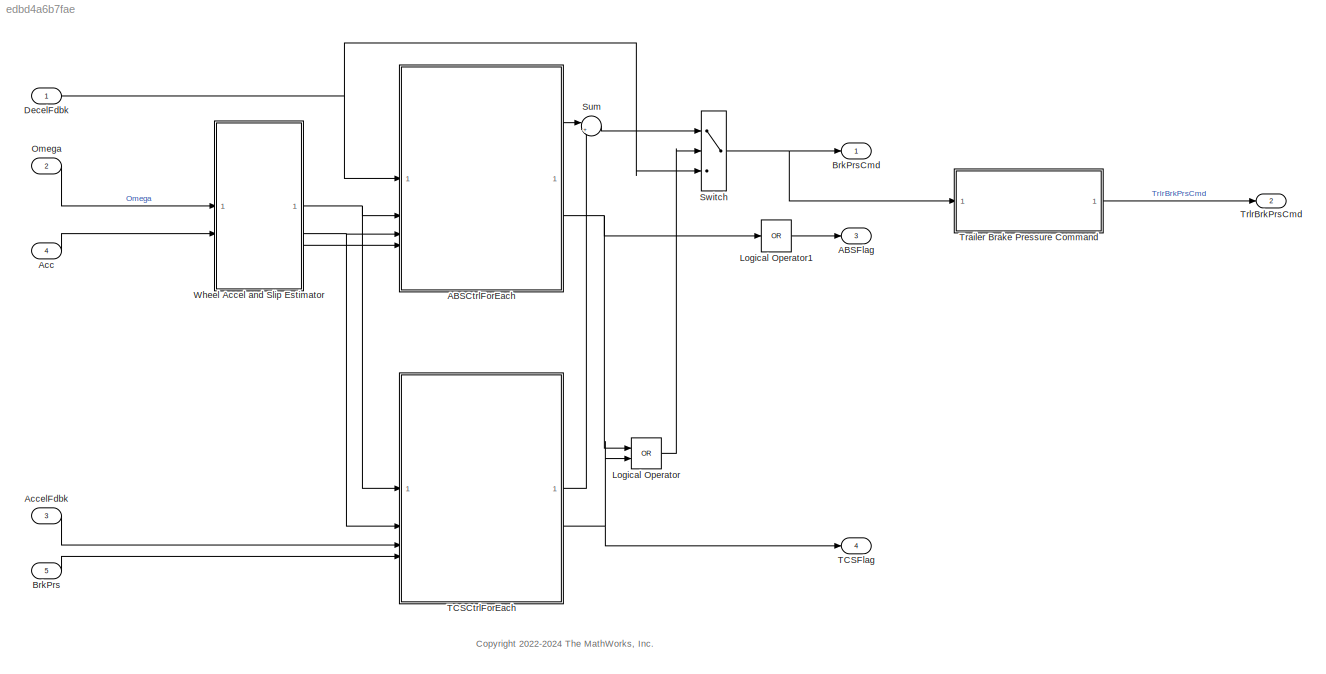
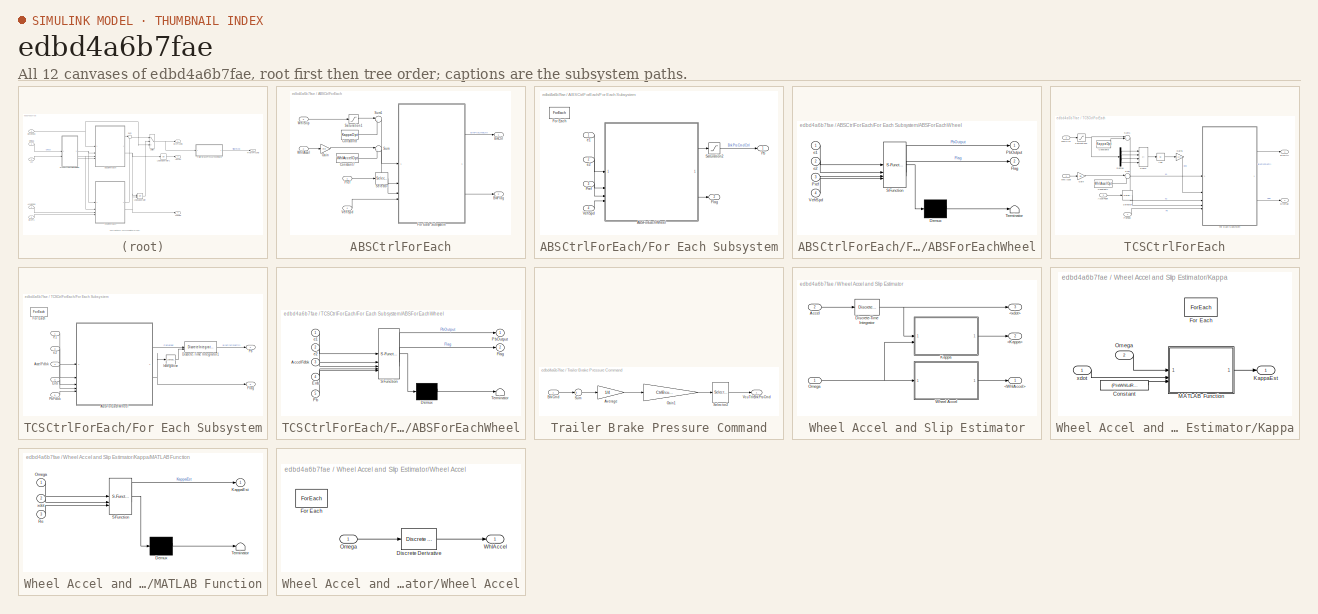
[diagram: thumbnail index - all 12 canvases of the model, root first then tree order]
MODEL slx_edbd4a6b7fae
KIND model
BLOCK [SubSystem] ABSCtrlForEach
BLOCK [Outport] ABSCtrlForEach/BrkCtrl
BLOCK [Outport] ABSCtrlForEach/BrkFlag
  Port = 2
BLOCK [Constant] ABSCtrlForEach/Constant7
  Value = WhlAccelOpt
BLOCK [Constant] ABSCtrlForEach/Constant8
  Value = KappaOpt
BLOCK [SubSystem] ABSCtrlForEach/For Each Subsystem
  TreatAsAtomicUnit = on
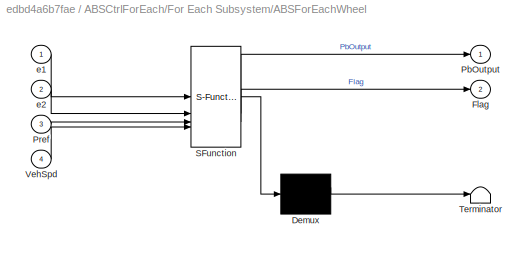
BLOCK [SubSystem] ABSCtrlForEach/For Each Subsystem/ABSForEachWheel
  ErrorFcn = Stateflow.Translate.translate
  InitFcn = [~]=vehdynicon('vehdynblk',gcb);
  PermitHierarchicalResolution = ExplicitOnly
  SFBlockType = Chart
  TreatAsAtomicUnit = on
BLOCK [Demux] ABSCtrlForEach/For Each Subsystem/ABSForEachWheel/ Demux 
  Outputs = 1
BLOCK [S-Function] ABSCtrlForEach/For Each Subsystem/ABSForEachWheel/ SFunction 
  EnableBusSupport = off
  FunctionName = sf_sfun
  Parameters = A,a1,a2,b,v1,v4,v5
  PortCounts = [4 3]
  SFcnIsStateOwnerBlock = off
  SFunctionDeploymentMode = off
  Tag = Stateflow S-Function 6
BLOCK [Terminator] ABSCtrlForEach/For Each Subsystem/ABSForEachWheel/ Terminator 
BLOCK [Outport] ABSCtrlForEach/For Each Subsystem/ABSForEachWheel/Flag
  Port = 2
BLOCK [Outport] ABSCtrlForEach/For Each Subsystem/ABSForEachWheel/PbOutput
BLOCK [Inport] ABSCtrlForEach/For Each Subsystem/ABSForEachWheel/Pref
  Port = 3
BLOCK [Inport] ABSCtrlForEach/For Each Subsystem/ABSForEachWheel/VehSpd
  Port = 4
BLOCK [Inport] ABSCtrlForEach/For Each Subsystem/ABSForEachWheel/e1
BLOCK [Inport] ABSCtrlForEach/For Each Subsystem/ABSForEachWheel/e2
  Port = 2
BLOCK [Outport] ABSCtrlForEach/For Each Subsystem/Flag
  ConcatenationDimension = 1
  Port = 2
BLOCK [ForEach] ABSCtrlForEach/For Each Subsystem/For Each
  DisableCoverage = on
BLOCK [Outport] ABSCtrlForEach/For Each Subsystem/Pb
  ConcatenationDimension = 1
BLOCK [Inport] ABSCtrlForEach/For Each Subsystem/Pref
  Partition = on
  PartitionDimension = 1
  PartitionOffset = 0
  PartitionWidth = 1
  Port = 3
BLOCK [Saturate] ABSCtrlForEach/For Each Subsystem/Saturation2
  LowerLimit = 0
  UpperLimit = 1
  ZeroCross = off
BLOCK [Inport] ABSCtrlForEach/For Each Subsystem/VehSpd
  Port = 4
BLOCK [Inport] ABSCtrlForEach/For Each Subsystem/e1
  Partition = on
  PartitionDimension = 1
  PartitionOffset = 0
  PartitionWidth = 1
BLOCK [Inport] ABSCtrlForEach/For Each Subsystem/e2
  Partition = on
  PartitionDimension = 1
  PartitionOffset = 0
  PartitionWidth = 1
  Port = 2
BLOCK [Gain] ABSCtrlForEach/Gain
  Gain = Re
BLOCK [Inport] ABSCtrlForEach/Pref
BLOCK [Saturate] ABSCtrlForEach/Saturation1
  LowerLimit = -1
  UpperLimit = 1
BLOCK [Selector] ABSCtrlForEach/Selector
  IndexOptions = Index vector (dialog)
  Indices = [1 1 1 1]
  InputPortWidth = 1
  OutputSizes = 1
BLOCK [Sum] ABSCtrlForEach/Sum
  Inputs = |+-
BLOCK [Sum] ABSCtrlForEach/Sum1
  Inputs = |+-
BLOCK [Inport] ABSCtrlForEach/VehSpd
  Port = 4
BLOCK [Inport] ABSCtrlForEach/WhlAccel
  Port = 2
BLOCK [Inport] ABSCtrlForEach/WhlSlip
  Port = 3
BLOCK [Outport] ABSFlag
  Port = 3
BLOCK [Inport] Acc
  OutDataTypeStr = double
  Port = 4
  PortDimensions = 1
BLOCK [Inport] AccelFdbk
  OutDataTypeStr = double
  Port = 3
  PortDimensions = 1
BLOCK [Inport] BrkPrs
  OutDataTypeStr = double
  Port = 5
  PortDimensions = 4
BLOCK [Outport] BrkPrsCmd
  OutDataTypeStr = double
  PortDimensions = 4
BLOCK [Inport] DecelFdbk
  OutDataTypeStr = double
  PortDimensions = 1
BLOCK [Logic] Logical Operator
  AllPortsSameDT = off
  Operator = OR
  OutDataTypeStr = boolean
BLOCK [Logic] Logical Operator1
  AllPortsSameDT = off
  Inputs = 1
  Operator = OR
  OutDataTypeStr = boolean
BLOCK [Inport] Omega
  OutDataTypeStr = double
  Port = 2
  PortDimensions = 4
BLOCK [Sum] Sum
  Inputs = |++
BLOCK [Switch] Switch
  Criteria = u2 > Threshold
  InputSameDT = off
  SaturateOnIntegerOverflow = off
BLOCK [SubSystem] TCSCtrlForEach
BLOCK [Abs] TCSCtrlForEach/Abs
  SaturateOnIntegerOverflow = off
BLOCK [Inport] TCSCtrlForEach/AccelFdbk
  Port = 3
BLOCK [Outport] TCSCtrlForEach/BrkCtrl
BLOCK [Outport] TCSCtrlForEach/BrkFlag
  Port = 2
BLOCK [Constant] TCSCtrlForEach/Constant7
  Value = WhlAccelOpt
BLOCK [Constant] TCSCtrlForEach/Constant8
  Value = KappaOpt
BLOCK [Demux] TCSCtrlForEach/Demux
BLOCK [SubSystem] TCSCtrlForEach/For Each Subsystem
  TreatAsAtomicUnit = on
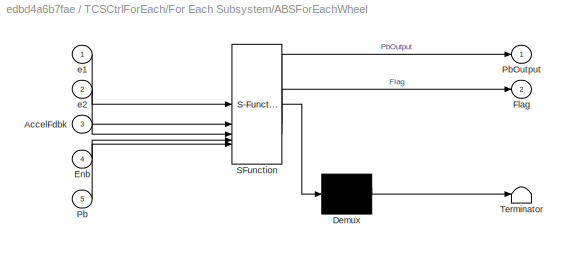
BLOCK [SubSystem] TCSCtrlForEach/For Each Subsystem/ABSForEachWheel
  ErrorFcn = Stateflow.Translate.translate
  InitFcn = [~]=vehdynicon('vehdynblk',gcb);
  PermitHierarchicalResolution = ExplicitOnly
  SFBlockType = Chart
  TreatAsAtomicUnit = on
BLOCK [Demux] TCSCtrlForEach/For Each Subsystem/ABSForEachWheel/ Demux 
  Outputs = 1
BLOCK [S-Function] TCSCtrlForEach/For Each Subsystem/ABSForEachWheel/ SFunction 
  EnableBusSupport = off
  FunctionName = sf_sfun
  Parameters = A,EntryEnableThreshold,RampOutSlipThreshold,a1,a2,b,v1,v4,v5
  PortCounts = [5 3]
  SFcnIsStateOwnerBlock = off
  SFunctionDeploymentMode = off
  Tag = Stateflow S-Function 7
BLOCK [Terminator] TCSCtrlForEach/For Each Subsystem/ABSForEachWheel/ Terminator 
BLOCK [Inport] TCSCtrlForEach/For Each Subsystem/ABSForEachWheel/AccelFdbk
  Port = 3
BLOCK [Inport] TCSCtrlForEach/For Each Subsystem/ABSForEachWheel/Enb
  Port = 4
BLOCK [Outport] TCSCtrlForEach/For Each Subsystem/ABSForEachWheel/Flag
  Port = 2
BLOCK [Inport] TCSCtrlForEach/For Each Subsystem/ABSForEachWheel/Pb
  Port = 5
BLOCK [Outport] TCSCtrlForEach/For Each Subsystem/ABSForEachWheel/PbOutput
BLOCK [Inport] TCSCtrlForEach/For Each Subsystem/ABSForEachWheel/e1
BLOCK [Inport] TCSCtrlForEach/For Each Subsystem/ABSForEachWheel/e2
  Port = 2
BLOCK [Inport] TCSCtrlForEach/For Each Subsystem/AccelFdbk
  Partition = on
  PartitionDimension = 1
  PartitionOffset = 0
  PartitionWidth = 1
  Port = 4
BLOCK [DiscreteIntegrator] TCSCtrlForEach/For Each Subsystem/Discrete-Time Integrator1
  ExternalReset = rising
  ICPrevOutput = DiscIntNeverNeededParam
  ICPrevScaledInput = DiscIntNeverNeededParam
  InitialConditionSetting = Auto
  IntegratorMethod = Integration: Trapezoidal
  LimitOutput = on
  LowerSaturationLimit = 0
  SampleTime = -1
  UpperSaturationLimit = 1
BLOCK [Inport] TCSCtrlForEach/For Each Subsystem/Enb
  Port = 2
BLOCK [Outport] TCSCtrlForEach/For Each Subsystem/Flag
  ConcatenationDimension = 1
  Port = 2
BLOCK [ForEach] TCSCtrlForEach/For Each Subsystem/For Each
  DisableCoverage = on
BLOCK [Reference] TCSCtrlForEach/For Each Subsystem/IsNegative  REF=simulink/Logic and Bit
Operations/Compare
To Zero
  SourceBlock = simulink/Logic and Bit\nOperations/Compare\nTo Zero
  SourceType = Compare To Zero
BLOCK [Outport] TCSCtrlForEach/For Each Subsystem/Pb
  ConcatenationDimension = 1
BLOCK [Inport] TCSCtrlForEach/For Each Subsystem/PbFdbk
  Partition = on
  PartitionDimension = 1
  PartitionOffset = 0
  PartitionWidth = 1
  Port = 5
BLOCK [Inport] TCSCtrlForEach/For Each Subsystem/e1
  Partition = on
  PartitionDimension = 1
  PartitionOffset = 0
  PartitionWidth = 1
BLOCK [Inport] TCSCtrlForEach/For Each Subsystem/e2
  Partition = on
  PartitionDimension = 1
  PartitionOffset = 0
  PartitionWidth = 1
  Port = 3
BLOCK [Gain] TCSCtrlForEach/Gain
  Gain = Re
BLOCK [Gain] TCSCtrlForEach/Gain1
  Gain = 1/2
BLOCK [Inport] TCSCtrlForEach/PbFdbk
  Port = 4
BLOCK [Saturate] TCSCtrlForEach/Saturation1
  LowerLimit = -1
  UpperLimit = 1
BLOCK [Selector] TCSCtrlForEach/Selector
  IndexOptions = Index vector (dialog)
  Indices = [1 1 1 1]
  InputPortWidth = 1
  OutputSizes = 1
BLOCK [Sum] TCSCtrlForEach/Sum
  Inputs = |+-
BLOCK [Sum] TCSCtrlForEach/Sum1
  Inputs = |+-
BLOCK [Sum] TCSCtrlForEach/Sum2
  IconShape = rectangular
  Inputs = ++--
BLOCK [Inport] TCSCtrlForEach/WhlAccel
BLOCK [Inport] TCSCtrlForEach/WhlSlip
  Port = 2
BLOCK [Outport] TCSFlag
  OutDataTypeStr = double
  Port = 4
  PortDimensions = 4
BLOCK [SubSystem] Trailer Brake Pressure Command
BLOCK [Gain] Trailer Brake Pressure Command/Average
  Gain = 1/4
BLOCK [Inport] Trailer Brake Pressure Command/BrkCmd
BLOCK [Gain] Trailer Brake Pressure Command/Gain1
  Gain = CtrlBcuTrlrBrkGain
BLOCK [Selector] Trailer Brake Pressure Command/Selector2
  IndexOptions = Index vector (dialog)
  Indices = [1 1 1 1 1 1]
  InputPortWidth = 1
  OutputSizes = 1
BLOCK [Sum] Trailer Brake Pressure Command/Sum
  Inputs = +
BLOCK [Outport] Trailer Brake Pressure Command/VcuTrlrBrkPrsCmd
BLOCK [Outport] TrlrBrkPrsCmd
  Port = 2
  PortDimensions = 6
  VectorParamsAs1DForOutWhenUnconnected = off
BLOCK [SubSystem] Wheel Accel and Slip Estimator
BLOCK [Outport] Wheel Accel and Slip Estimator/<Kappa>
  Port = 2
BLOCK [Outport] Wheel Accel and Slip Estimator/<WhlAccel>
BLOCK [Outport] Wheel Accel and Slip Estimator/<xdot>
  Port = 3
BLOCK [Inport] Wheel Accel and Slip Estimator/Accel
  Port = 2
BLOCK [DiscreteIntegrator] Wheel Accel and Slip Estimator/Discrete-Time Integrator
  ICPrevOutput = DiscIntNeverNeededParam
  ICPrevScaledInput = DiscIntNeverNeededParam
  InitialConditionSetting = Auto
  IntegratorMethod = Integration: Trapezoidal
  SampleTime = -1
BLOCK [SubSystem] Wheel Accel and Slip Estimator/Kappa
  TreatAsAtomicUnit = on
BLOCK [Constant] Wheel Accel and Slip Estimator/Kappa/Constant
  Value = (PlntWhlLdRadiusFrnt + PlntWhlLdRadiusRear)/2
BLOCK [ForEach] Wheel Accel and Slip Estimator/Kappa/For Each
  DisableCoverage = on
BLOCK [Outport] Wheel Accel and Slip Estimator/Kappa/KappaEst
  ConcatenationDimension = 1
BLOCK [SubSystem] Wheel Accel and Slip Estimator/Kappa/MATLAB Function
  ErrorFcn = Stateflow.Translate.translate
  PermitHierarchicalResolution = ExplicitOnly
  SFBlockType = MATLAB Function
  TreatAsAtomicUnit = on
BLOCK [Demux] Wheel Accel and Slip Estimator/Kappa/MATLAB Function/ Demux 
  Outputs = 1
BLOCK [S-Function] Wheel Accel and Slip Estimator/Kappa/MATLAB Function/ SFunction 
  EnableBusSupport = off
  FunctionName = sf_sfun
  PortCounts = [3 2]
  SFcnIsStateOwnerBlock = off
  SFunctionDeploymentMode = off
  Tag = Stateflow S-Function 8
BLOCK [Terminator] Wheel Accel and Slip Estimator/Kappa/MATLAB Function/ Terminator 
BLOCK [Outport] Wheel Accel and Slip Estimator/Kappa/MATLAB Function/KappaEst
BLOCK [Inport] Wheel Accel and Slip Estimator/Kappa/MATLAB Function/Omega
BLOCK [Inport] Wheel Accel and Slip Estimator/Kappa/MATLAB Function/Re
  Port = 3
BLOCK [Inport] Wheel Accel and Slip Estimator/Kappa/MATLAB Function/xdot
  Port = 2
BLOCK [Inport] Wheel Accel and Slip Estimator/Kappa/Omega
  Partition = on
  PartitionDimension = 1
  PartitionOffset = 0
  PartitionWidth = 1
  Port = 2
  PortDimensions = 1
BLOCK [Inport] Wheel Accel and Slip Estimator/Kappa/xdot
BLOCK [Inport] Wheel Accel and Slip Estimator/Omega
BLOCK [SubSystem] Wheel Accel and Slip Estimator/Wheel Accel
  TreatAsAtomicUnit = on
BLOCK [Reference] Wheel Accel and Slip Estimator/Wheel Accel/Discrete Derivative  REF=simulink/Discrete/Discrete Derivative
  SourceBlock = simulink/Discrete/Discrete Derivative
  SourceType = Discrete Derivative
BLOCK [ForEach] Wheel Accel and Slip Estimator/Wheel Accel/For Each
  DisableCoverage = on
BLOCK [Inport] Wheel Accel and Slip Estimator/Wheel Accel/Omega
  Partition = on
  PartitionDimension = 1
  PartitionOffset = 0
  PartitionWidth = 1
  PortDimensions = 1
BLOCK [Outport] Wheel Accel and Slip Estimator/Wheel Accel/WhlAccel
  ConcatenationDimension = 1
ANNOTATION (root): <copyright redacted>
LINE ABSCtrlForEach/Constant7:1 -> ABSCtrlForEach/Sum:2
LINE ABSCtrlForEach/Constant8:1 -> ABSCtrlForEach/Sum1:2
LINE ABSCtrlForEach/For Each Subsystem/ABSForEachWheel:1 -> ABSCtrlForEach/For Each Subsystem/Saturation2:1
LINE ABSCtrlForEach/For Each Subsystem/ABSForEachWheel:2 -> ABSCtrlForEach/For Each Subsystem/Flag:1
LINE ABSCtrlForEach/For Each Subsystem/Pref:1 -> ABSCtrlForEach/For Each Subsystem/ABSForEachWheel:3
LINE ABSCtrlForEach/For Each Subsystem/Saturation2:1 -> ABSCtrlForEach/For Each Subsystem/Pb:1
LINE ABSCtrlForEach/For Each Subsystem/VehSpd:1 -> ABSCtrlForEach/For Each Subsystem/ABSForEachWheel:4
LINE ABSCtrlForEach/For Each Subsystem/e1:1 -> ABSCtrlForEach/For Each Subsystem/ABSForEachWheel:1
LINE ABSCtrlForEach/For Each Subsystem/e2:1 -> ABSCtrlForEach/For Each Subsystem/ABSForEachWheel:2
LINE ABSCtrlForEach/For Each Subsystem:1 -> ABSCtrlForEach/BrkCtrl:1
LINE ABSCtrlForEach/For Each Subsystem:2 -> ABSCtrlForEach/BrkFlag:1
LINE ABSCtrlForEach/Gain:1 -> ABSCtrlForEach/Sum:1
LINE ABSCtrlForEach/Pref:1 -> ABSCtrlForEach/Selector:1
LINE ABSCtrlForEach/Saturation1:1 -> ABSCtrlForEach/Sum1:1
LINE ABSCtrlForEach/Selector:1 -> ABSCtrlForEach/For Each Subsystem:3
LINE ABSCtrlForEach/Sum1:1 -> ABSCtrlForEach/For Each Subsystem:1
LINE ABSCtrlForEach/Sum:1 -> ABSCtrlForEach/For Each Subsystem:2
LINE ABSCtrlForEach/VehSpd:1 -> ABSCtrlForEach/For Each Subsystem:4
LINE ABSCtrlForEach/WhlAccel:1 -> ABSCtrlForEach/Gain:1
LINE ABSCtrlForEach/WhlSlip:1 -> ABSCtrlForEach/Saturation1:1
LINE ABSCtrlForEach:1 -> Sum:1
NET ABSCtrlForEach:2 -> Logical Operator1:1, Logical Operator:1
LINE Acc:1 -> Wheel Accel and Slip Estimator:2
LINE AccelFdbk:1 -> TCSCtrlForEach:3
LINE BrkPrs:1 -> TCSCtrlForEach:4
NET DecelFdbk:1 -> ABSCtrlForEach:1, Switch:3
LINE Logical Operator1:1 -> ABSFlag:1
LINE Logical Operator:1 -> Switch:2
LINE Omega:1 -> Wheel Accel and Slip Estimator:1
LINE Sum:1 -> Switch:1
NET Switch:1 -> BrkPrsCmd:1, Trailer Brake Pressure Command:1
LINE TCSCtrlForEach/Abs:1 -> TCSCtrlForEach/Gain1:1
LINE TCSCtrlForEach/AccelFdbk:1 -> TCSCtrlForEach/Selector:1
LINE TCSCtrlForEach/Constant7:1 -> TCSCtrlForEach/Sum:2
LINE TCSCtrlForEach/Constant8:1 -> TCSCtrlForEach/Sum1:2
LINE TCSCtrlForEach/Demux:1 -> TCSCtrlForEach/Sum2:1
LINE TCSCtrlForEach/Demux:2 -> TCSCtrlForEach/Sum2:2
LINE TCSCtrlForEach/Demux:3 -> TCSCtrlForEach/Sum2:3
LINE TCSCtrlForEach/Demux:4 -> TCSCtrlForEach/Sum2:4
LINE TCSCtrlForEach/For Each Subsystem/ABSForEachWheel:1 -> TCSCtrlForEach/For Each Subsystem/Discrete-Time Integrator1:1
NET TCSCtrlForEach/For Each Subsystem/ABSForEachWheel:2 -> TCSCtrlForEach/For Each Subsystem/Flag:1, TCSCtrlForEach/For Each Subsystem/IsNegative:1
LINE TCSCtrlForEach/For Each Subsystem/AccelFdbk:1 -> TCSCtrlForEach/For Each Subsystem/ABSForEachWheel:3
LINE TCSCtrlForEach/For Each Subsystem/Discrete-Time Integrator1:1 -> TCSCtrlForEach/For Each Subsystem/Pb:1
LINE TCSCtrlForEach/For Each Subsystem/Enb:1 -> TCSCtrlForEach/For Each Subsystem/ABSForEachWheel:4
LINE TCSCtrlForEach/For Each Subsystem/IsNegative:1 -> TCSCtrlForEach/For Each Subsystem/Discrete-Time Integrator1:2
LINE TCSCtrlForEach/For Each Subsystem/PbFdbk:1 -> TCSCtrlForEach/For Each Subsystem/ABSForEachWheel:5
LINE TCSCtrlForEach/For Each Subsystem/e1:1 -> TCSCtrlForEach/For Each Subsystem/ABSForEachWheel:1
LINE TCSCtrlForEach/For Each Subsystem/e2:1 -> TCSCtrlForEach/For Each Subsystem/ABSForEachWheel:2
LINE TCSCtrlForEach/For Each Subsystem:1 -> TCSCtrlForEach/BrkCtrl:1
LINE TCSCtrlForEach/For Each Subsystem:2 -> TCSCtrlForEach/BrkFlag:1
LINE TCSCtrlForEach/Gain1:1 -> TCSCtrlForEach/For Each Subsystem:2
LINE TCSCtrlForEach/Gain:1 -> TCSCtrlForEach/Sum:1
LINE TCSCtrlForEach/PbFdbk:1 -> TCSCtrlForEach/For Each Subsystem:5
NET TCSCtrlForEach/Saturation1:1 -> TCSCtrlForEach/Demux:1, TCSCtrlForEach/Sum1:1
LINE TCSCtrlForEach/Selector:1 -> TCSCtrlForEach/For Each Subsystem:4
LINE TCSCtrlForEach/Sum1:1 -> TCSCtrlForEach/For Each Subsystem:1
LINE TCSCtrlForEach/Sum2:1 -> TCSCtrlForEach/Abs:1
LINE TCSCtrlForEach/Sum:1 -> TCSCtrlForEach/For Each Subsystem:3
LINE TCSCtrlForEach/WhlAccel:1 -> TCSCtrlForEach/Gain:1
LINE TCSCtrlForEach/WhlSlip:1 -> TCSCtrlForEach/Saturation1:1
LINE TCSCtrlForEach:1 -> Sum:2
NET TCSCtrlForEach:2 -> Logical Operator:2, TCSFlag:1
LINE Trailer Brake Pressure Command/Average:1 -> Trailer Brake Pressure Command/Gain1:1
LINE Trailer Brake Pressure Command/BrkCmd:1 -> Trailer Brake Pressure Command/Sum:1
LINE Trailer Brake Pressure Command/Gain1:1 -> Trailer Brake Pressure Command/Selector2:1
LINE Trailer Brake Pressure Command/Selector2:1 -> Trailer Brake Pressure Command/VcuTrlrBrkPrsCmd:1
LINE Trailer Brake Pressure Command/Sum:1 -> Trailer Brake Pressure Command/Average:1
LINE Trailer Brake Pressure Command:1 -> TrlrBrkPrsCmd:1
LINE Wheel Accel and Slip Estimator/Accel:1 -> Wheel Accel and Slip Estimator/Discrete-Time Integrator:1
NET Wheel Accel and Slip Estimator/Discrete-Time Integrator:1 -> Wheel Accel and Slip Estimator/<xdot>:1, Wheel Accel and Slip Estimator/Kappa:1
LINE Wheel Accel and Slip Estimator/Kappa/Constant:1 -> Wheel Accel and Slip Estimator/Kappa/MATLAB Function:3
LINE Wheel Accel and Slip Estimator/Kappa/MATLAB Function:1 -> Wheel Accel and Slip Estimator/Kappa/KappaEst:1
LINE Wheel Accel and Slip Estimator/Kappa/Omega:1 -> Wheel Accel and Slip Estimator/Kappa/MATLAB Function:1
LINE Wheel Accel and Slip Estimator/Kappa/xdot:1 -> Wheel Accel and Slip Estimator/Kappa/MATLAB Function:2
LINE Wheel Accel and Slip Estimator/Kappa:1 -> Wheel Accel and Slip Estimator/<Kappa>:1
NET Wheel Accel and Slip Estimator/Omega:1 -> Wheel Accel and Slip Estimator/Kappa:2, Wheel Accel and Slip Estimator/Wheel Accel:1
LINE Wheel Accel and Slip Estimator/Wheel Accel/Discrete Derivative:1 -> Wheel Accel and Slip Estimator/Wheel Accel/WhlAccel:1
LINE Wheel Accel and Slip Estimator/Wheel Accel/Omega:1 -> Wheel Accel and Slip Estimator/Wheel Accel/Discrete Derivative:1
LINE Wheel Accel and Slip Estimator/Wheel Accel:1 -> Wheel Accel and Slip Estimator/<WhlAccel>:1
NET Wheel Accel and Slip Estimator:1 -> ABSCtrlForEach:2, TCSCtrlForEach:1
NET Wheel Accel and Slip Estimator:2 -> ABSCtrlForEach:3, TCSCtrlForEach:2
LINE Wheel Accel and Slip Estimator:3 -> ABSCtrlForEach:4
note: NET lines group one-source signal fan-out (src -> all destinations, sorted); 1:1 wires keep LINE
CHART ABSCtrlForEach/For Each
Subsystem/ABSForEachWheel states=8 transitions=11
  STATE_LABEL 'ABSOff\nentry:\nPbOutput = Pref;\nFlag = 0;\nduring:\nPbOutput = Pref;'
  STATE_LABEL 'Normal\nentry:\nPbOutput = Pref;\nFlag = 0;\nduring:\nPbOutput = Pref;\n'
  STATE_LABEL 'ABSOn'
  STATE_LABEL 'Phase1\nentry:\nPbOutput = v1;\nFlag = 1;'
  STATE_LABEL 'Phase5\nentry:\nPbOutput = v5;\nFlag = 5;'
  STATE_LABEL 'Phase2\nentry:\nPbOutput = 0;\nFlag = 2;'
  STATE_LABEL 'Phase4\nentry:\nPbOutput = 0;\nFlag = 4;'
  STATE_LABEL 'Phase3\nentry:\nPbOutput = v4;\nFlag = 3;'
  STATE_LABEL '[e2 < a2]'
  STATE_LABEL '[e2 >= b]'
  STATE_LABEL '[e2 <= a1]'
  STATE_LABEL '[e2 >= A]'
  STATE_LABEL '[e2 < A]'
  STATE_LABEL 'Phase1\nentry:\nPbOutput = v1;\nFlag = 1;'
  STATE_LABEL 'Phase5\nentry:\nPbOutput = v5;\nFlag = 5;'
  STATE_LABEL 'Phase2\nentry:\nPbOutput = 0;\nFlag = 2;'
  STATE_LABEL 'Phase4\nentry:\nPbOutput = 0;\nFlag = 4;'
  STATE_LABEL 'Phase3\nentry:\nPbOutput = v4;\nFlag = 3;'
CHART TCSCtrlForEach/For Each
Subsystem/ABSForEachWheel states=9 transitions=22
  STATE_LABEL 'TCSOff\nentry:\nPbOutput = 0;\nFlag = 0;\n'
  STATE_LABEL 'IDLE'
  STATE_LABEL 'Normal\n\n'
  STATE_LABEL '[AccelFdbk > 0]'
  STATE_LABEL '[e2 > a2]'
  STATE_LABEL '[Enb > EntryEnableThreshold]'
  STATE_LABEL '[AccelFdbk <= 0]'
  STATE_LABEL 'IDLE'
  STATE_LABEL 'Normal\n\n'
  STATE_LABEL 'TCSOn'
  STATE_LABEL 'Phase1\nentry:\nPbOutput = v1;\nFlag = 1;'
  STATE_LABEL 'Phase3\nentry:\nPbOutput = v4;\nFlag = 3;'
  STATE_LABEL 'Phase2\nentry:\nPbOutput = 0;\nFlag = 2;'
  STATE_LABEL 'Phase5\nentry:\nPbOutput = v5;\nFlag = 5;'
  STATE_LABEL 'Phase4\nentry:\nPbOutput = 0;\nFlag = 4;'
  STATE_LABEL '[e1 <= RampOutSlipThreshold]'
  STATE_LABEL '[e2 > a2]'
  STATE_LABEL '[e2 <= b]'
  STATE_LABEL '[e2 <= A]'
  STATE_LABEL '[e1 <= RampOutSlipThreshold]'
  STATE_LABEL '[e1 <= RampOutSlipThreshold]'
  STATE_LABEL '[e2 >= a1]'
  STATE_LABEL '[e1 > 0]'
  STATE_LABEL '[e2 > A]'
  STATE_LABEL '[e1 <= RampOutSlipThreshold]'
  STATE_LABEL 'Phase1\nentry:\nPbOutput = v1;\nFlag = 1;'
  STATE_LABEL 'Phase3\nentry:\nPbOutput = v4;\nFlag = 3;'
  STATE_LABEL 'Phase2\nentry:\nPbOutput = 0;\nFlag = 2;'
  STATE_LABEL 'Phase5\nentry:\nPbOutput = v5;\nFlag = 5;'
  STATE_LABEL 'Phase4\nentry:\nPbOutput = 0;\nFlag = 4;'
CHART Wheel Accel and Slip Estimator/Kappa/MATLAB Function states=1 transitions=1
  STATE_LABEL 'eML_blk_kernel()'
  STATE_LABEL 'SCRIPT:\nfunction KappaEst = fcn(Omega, xdot, Re)\n\nKappaEst = 0;\nWhlSpd = Omega * Re;\n\nif xdot*WhlSpd ~= 0\n    KappaEst = (WhlSpd - xdot)/max([abs(xdot) abs(WhlSpd)]);\nend\n'
CHART  states=0 transitions=0
CHART  states=0 transitions=0
CHART  states=0 transitions=0
